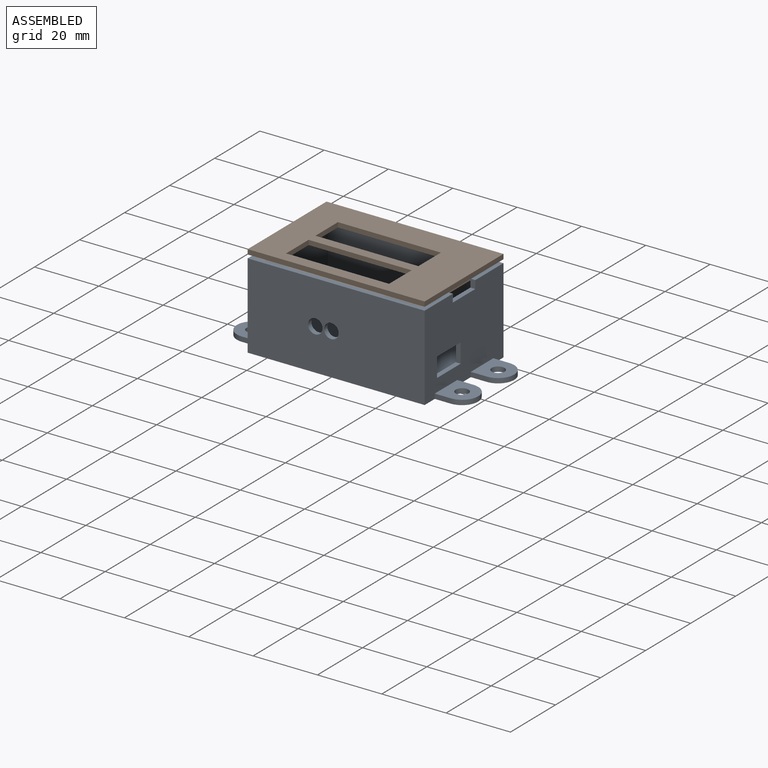
[diagram: assembled view]
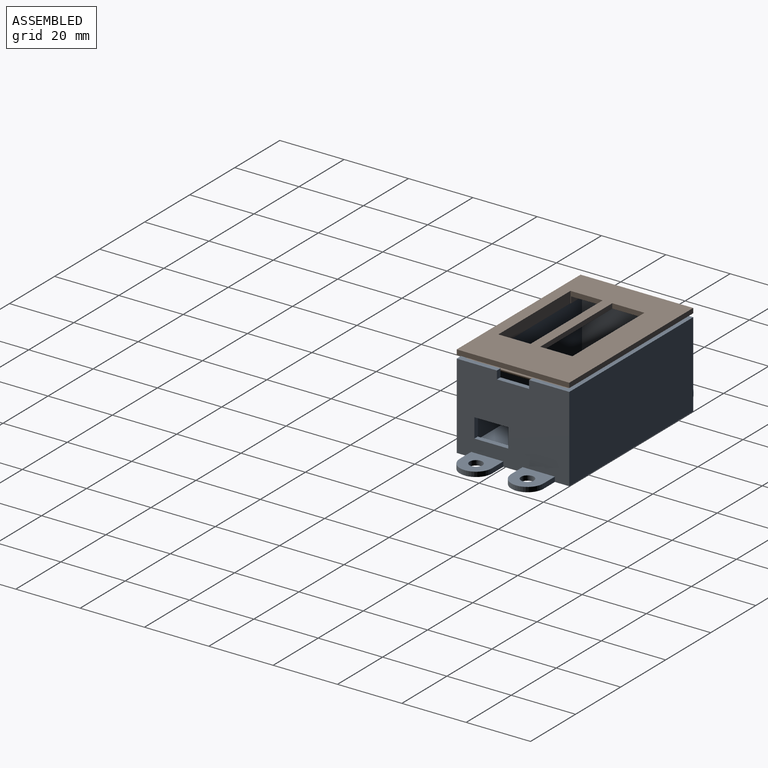
[diagram: assembled view, second angle]
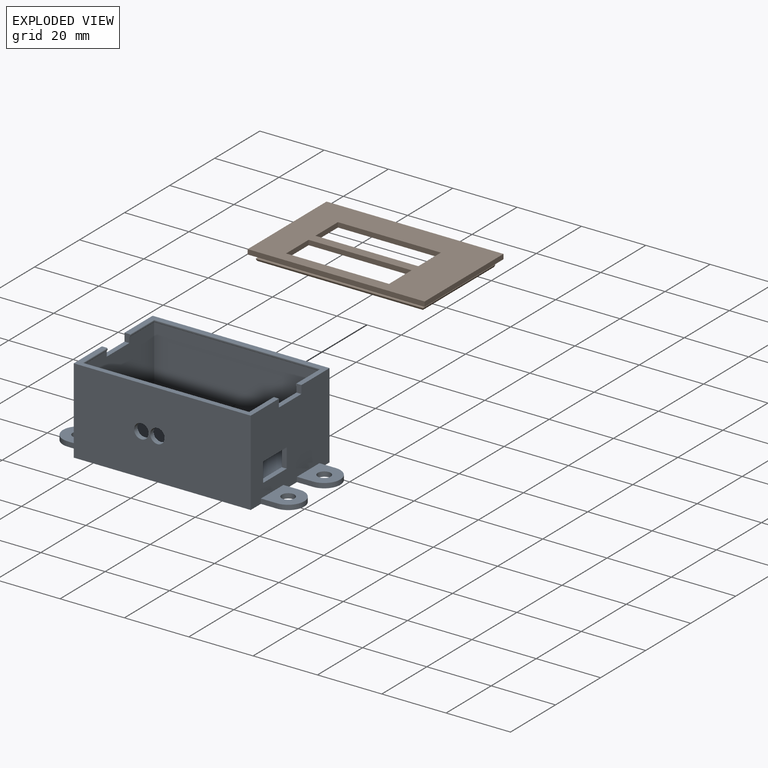
[diagram: exploded view]
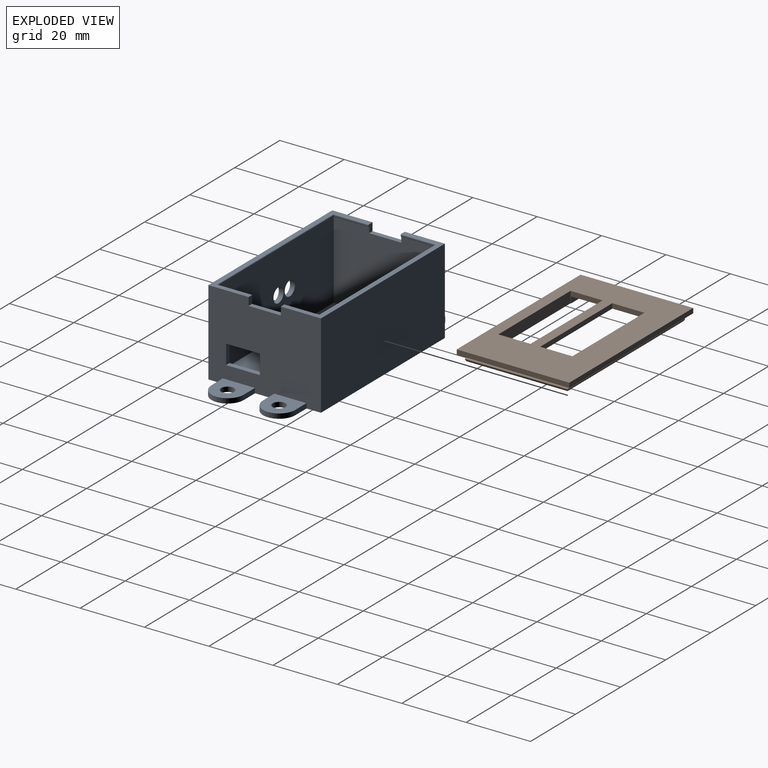
[diagram: exploded view, second angle]
ASSEMBLY  parts=2 mates=2
PART A: 66 faces, bbox 75x35x26.5 mm
  f0: plane 32x24.25mm, normal (-1,0,0), area 695.5mm2, adj f9,f10,f11,f17,f20,f21,f22,f23
  f1: plane 32x24.25mm, normal (1,0,0), area 695.5mm2, adj f8,f10,f11,f17,f24,f25,f26,f27
  f2: plane 35x26.5mm, normal (-1,0,0), area 809.5mm2, adj f3,f13,f14,f15,f16,f24,f25,f26
  f3: plane 55x12.5mm, normal (0,0,1), area 115.5mm2, adj f2,f6,f7,f12,f13,f52,f60,f63
  f4: plane 10.75x0.25mm, normal (-1,0,0), area 2.7mm2, adj f7,f9,f49,f60
  f5: plane 10.75x0.25mm, normal (1,0,0), area 2.7mm2, adj f6,f8,f49,f63
  f6: cylinder r=0.25mm len=11mm, axis (0,1,0), area 4.3mm2, adj f3,f5,f52,f63
  f7: cylinder r=0.25mm len=11mm, axis (0,-1,0), area 4.3mm2, adj f3,f4,f52,f60
  f8: cylinder r=0.25mm len=11mm, axis (0,-1,0), area 4.3mm2, adj f1,f5,f56,f63
  f9: cylinder r=0.25mm len=11mm, axis (0,1,0), area 4.3mm2, adj f0,f4,f56,f60
  f10: plane 52x24.25mm, normal (0,-1,0), area 1261mm2, adj f0,f1,f17,f59
  f11: plane 52x24.25mm, normal (0,1,0), area 1229.2mm2, adj f0,f1,f17,f18,f19,f56
  f12: plane 35x26.5mm, normal (1,0,0), area 809.5mm2, adj f3,f13,f14,f15,f16,f20,f21,f22
  f13: plane 55x26.5mm, normal (0,-1,0), area 1425.7mm2, adj f2,f3,f12,f15,f18,f19
  f14: plane 55x26.5mm, normal (0,1,0), area 1457.5mm2, adj f2,f12,f15,f16
  f15: plane 75x35mm, normal (0,0,-1), area 2231.8mm2, adj f2,f12,f13,f14,f29,f30,f31,f32
  f16: plane 55x12.5mm, normal (0,0,1), area 115.5mm2, adj f2,f12,f14,f53,f54,f55,f61,f64
  f17: plane 52x32mm, normal (0,0,1), area 1664mm2, adj f0,f1,f10,f11
  f18: cylinder r=2.25mm len=4.5mm, axis (0,-1,0), area 21.2mm2, adj f11,f13
  f19: cylinder r=2.25mm len=4.5mm, axis (0,-1,0), area 21.2mm2, adj f11,f13
  f20: plane 10.5x1.5mm, normal (0,0,-1), area 15.7mm2, adj f0,f12,f21,f23
  f21: plane 6x1.5mm, normal (0,1,0), area 9mm2, adj f0,f12,f20,f22
  f22: plane 10.5x1.5mm, normal (0,0,1), area 15.7mm2, adj f0,f12,f21,f23
  f23: plane 6x1.5mm, normal (0,-1,0), area 9mm2, adj f0,f12,f20,f22
  f24: plane 6x1.5mm, normal (0,-1,0), area 9mm2, adj f1,f2,f25,f27
  f25: plane 10.5x1.5mm, normal (0,0,1), area 15.7mm2, adj f1,f2,f24,f26
  f26: plane 6x1.5mm, normal (0,1,0), area 9mm2, adj f1,f2,f25,f27
  f27: plane 10.5x1.5mm, normal (0,0,-1), area 15.7mm2, adj f1,f2,f24,f26
  f28: plane 10x10mm, normal (0,0,1), area 76.7mm2, adj f2,f29,f30,f31,f32
  f29: plane 5x1.5mm, normal (0,-1,0), area 7.5mm2, adj f2,f15,f28,f30
  f30: cylinder r=5mm len=10mm, axis (0,0,-1), area 23.6mm2, adj f15,f28,f29,f31
  f31: plane 5x1.5mm, normal (0,1,0), area 7.5mm2, adj f2,f15,f28,f30
  f32: cylinder r=2mm len=4mm, axis (0,0,-1), area 18.8mm2, adj f15,f28
  f33: plane 10x10mm, normal (0,0,1), area 76.7mm2, adj f2,f34,f35,f36,f37
  f34: plane 5x1.5mm, normal (0,-1,0), area 7.5mm2, adj f2,f15,f33,f37
  f35: cylinder r=2mm len=4mm, axis (0,0,-1), area 18.8mm2, adj f15,f33
  f36: plane 5x1.5mm, normal (0,1,0), area 7.5mm2, adj f2,f15,f33,f37
  f37: cylinder r=5mm len=10mm, axis (0,0,-1), area 23.6mm2, adj f15,f33,f34,f36
  f38: plane 10x10mm, normal (0,0,1), area 76.7mm2, adj f12,f39,f40,f41,f42
  f39: plane 5x1.5mm, normal (0,1,0), area 7.5mm2, adj f12,f15,f38,f42
  f40: cylinder r=2mm len=4mm, axis (0,0,-1), area 18.8mm2, adj f15,f38
  f41: plane 5x1.5mm, normal (0,-1,0), area 7.5mm2, adj f12,f15,f38,f42
  f42: cylinder r=5mm len=10mm, axis (0,0,-1), area 23.6mm2, adj f15,f38,f39,f41
  f43: plane 10x10mm, normal (0,0,1), area 76.7mm2, adj f12,f44,f45,f46,f47
  f44: plane 5x1.5mm, normal (0,-1,0), area 7.5mm2, adj f12,f15,f43,f45
  f45: cylinder r=5mm len=10mm, axis (0,0,-1), area 23.6mm2, adj f15,f43,f44,f46
  f46: plane 5x1.5mm, normal (0,1,0), area 7.5mm2, adj f12,f15,f43,f45
  f47: cylinder r=2mm len=4mm, axis (0,0,-1), area 18.8mm2, adj f15,f43
  f48: plane 10.75x0.25mm, normal (-1,0,0), area 2.7mm2, adj f51,f54,f58,f61
  f49: plane 51.5x0.25mm, normal (0,1,0), area 12.9mm2, adj f4,f5,f52,f56
  f50: plane 10.75x0.25mm, normal (1,0,0), area 2.7mm2, adj f51,f53,f57,f64
  f51: plane 51.5x0.25mm, normal (0,-1,0), area 12.9mm2, adj f48,f50,f55,f59
  f52: cylinder r=0.25mm len=52mm, axis (-1,0,0), area 20.3mm2, adj f3,f6,f7,f49
  f53: cylinder r=0.25mm len=11mm, axis (0,1,0), area 4.3mm2, adj f16,f50,f55,f64
  f54: cylinder r=0.25mm len=11mm, axis (0,-1,0), area 4.3mm2, adj f16,f48,f55,f61
  f55: cylinder r=0.25mm len=52mm, axis (1,0,0), area 20.3mm2, adj f16,f51,f53,f54
  f56: cylinder r=0.25mm len=52mm, axis (1,0,0), area 20.3mm2, adj f8,f9,f11,f49
  f57: cylinder r=0.25mm len=11mm, axis (0,-1,0), area 4.3mm2, adj f1,f50,f59,f64
  f58: cylinder r=0.25mm len=11mm, axis (0,1,0), area 4.3mm2, adj f0,f48,f59,f61
  f59: cylinder r=0.25mm len=52mm, axis (-1,0,0), area 20.3mm2, adj f10,f51,f57,f58
  f60: plane 2.5x1.75mm, normal (0,1,0), area 3.9mm2, adj f0,f3,f4,f7,f9,f12,f62
  f61: plane 2.5x1.75mm, normal (0,-1,0), area 3.9mm2, adj f0,f12,f16,f48,f54,f58,f62
  f62: plane 10x1.5mm, normal (0,0,1), area 15mm2, adj f0,f12,f60,f61
  f63: plane 2.5x1.75mm, normal (0,1,0), area 3.9mm2, adj f1,f2,f3,f5,f6,f8,f65
  f64: plane 2.5x1.75mm, normal (0,-1,0), area 3.9mm2, adj f1,f2,f16,f50,f53,f57,f65
  f65: plane 10x1.5mm, normal (0,0,1), area 15mm2, adj f1,f2,f63,f64
PART B: 45 faces, bbox 55x35x3.5 mm
  f0: plane 10.5x2mm, normal (0,1,0), area 21mm2, adj f31,f32,f35,f40
  f1: plane 55x35mm, normal (0,0,1), area 1285mm2, adj f3,f4,f5,f6,f37,f38,f39,f40
  f2: plane 55x35mm, normal (0,0,-1), area 344mm2, adj f3,f4,f5,f6,f9,f12,f15,f18
  f3: plane 55x1.5mm, normal (0,1,0), area 82.5mm2, adj f1,f2,f4,f5
  f4: plane 35x1.5mm, normal (1,0,0), area 52.5mm2, adj f1,f2,f3,f6
  f5: plane 35x1.5mm, normal (-1,0,0), area 52.5mm2, adj f1,f2,f3,f6
  f6: plane 55x1.5mm, normal (0,-1,0), area 82.5mm2, adj f1,f2,f4,f5
  f7: cylinder r=0.2mm len=52mm, axis (-1,0,0), area 10.9mm2, adj f8,f10,f13,f19
  f8: plane 51.8x0.4mm, normal (0,-0.5,0.87), area 23.7mm2, adj f7,f9,f11,f14
  f9: plane 51x1mm, normal (0,-1,0), area 51mm2, adj f2,f8,f12,f15
  f10: cylinder r=0.2mm len=32mm, axis (0,1,0), area 6.7mm2, adj f7,f11,f16,f20
  f11: plane 31.8x0.4mm, normal (-0.5,0,0.87), area 14.5mm2, adj f8,f10,f12,f17
  f12: plane 31x1mm, normal (-1,0,0), area 31mm2, adj f2,f9,f11,f18
  f13: cylinder r=0.2mm len=32mm, axis (0,-1,0), area 6.7mm2, adj f7,f14,f16,f22
  f14: plane 31.8x0.4mm, normal (0.5,0,0.87), area 14.5mm2, adj f8,f13,f15,f17
  f15: plane 31x1mm, normal (1,0,0), area 31mm2, adj f2,f9,f14,f18
  f16: cylinder r=0.2mm len=52mm, axis (1,0,0), area 10.9mm2, adj f10,f13,f17,f21
  f17: plane 51.8x0.4mm, normal (0,0.5,0.87), area 23.7mm2, adj f11,f14,f16,f18
  f18: plane 51x1mm, normal (0,1,0), area 51mm2, adj f2,f12,f15,f17
  f19: plane 52x0.03mm, normal (0,-1,0), area 1.4mm2, adj f7,f20,f22,f27
  f20: plane 32x0.03mm, normal (-1,0,0), area 0.9mm2, adj f10,f19,f21,f28
  f21: plane 52x0.03mm, normal (0,1,0), area 1.4mm2, adj f16,f20,f22,f29
  f22: plane 32x0.03mm, normal (1,0,0), area 0.9mm2, adj f13,f19,f21,f30
  f23: plane 51.89x0.37mm, normal (0,0.87,-0.5), area 22mm2, adj f24,f25,f29,f31
  f24: plane 31.89x0.37mm, normal (0.87,0,-0.5), area 13.5mm2, adj f23,f26,f30,f31
  f25: plane 31.89x0.37mm, normal (-0.87,0,-0.5), area 13.5mm2, adj f23,f26,f28,f31
  f26: plane 51.89x0.37mm, normal (0,-0.87,-0.5), area 22mm2, adj f24,f25,f27,f31
  f27: cylinder r=0.4mm len=52mm, axis (-1,0,0), area 10.9mm2, adj f19,f26,f28,f30
  f28: cylinder r=0.4mm len=32mm, axis (0,1,0), area 6.7mm2, adj f20,f25,f27,f29
  f29: cylinder r=0.4mm len=52mm, axis (1,0,0), area 10.9mm2, adj f21,f23,f28,f30
  f30: cylinder r=0.4mm len=32mm, axis (0,-1,0), area 6.7mm2, adj f22,f24,f27,f29
  f31: plane 51.47x31.47mm, normal (0,0,-1), area 258mm2, adj f0,f23,f24,f25,f26,f33,f34,f35
  f32: plane 49x27.68mm, normal (0,0,-1), area 721.6mm2, adj f0,f33,f34,f35,f36,f37,f38,f40
  f33: plane 27.68x2mm, normal (1,0,0), area 55.4mm2, adj f31,f32,f34,f36
  f34: plane 49x2mm, normal (0,-1,0), area 98mm2, adj f31,f32,f33,f35
  f35: plane 27.68x2mm, normal (-1,0,0), area 55.4mm2, adj f0,f31,f32,f34
  f36: plane 6.5x2mm, normal (0,1,0), area 13mm2, adj f31,f32,f33,f38
  f37: plane 32x1.5mm, normal (0,-1,0), area 48mm2, adj f1,f32,f38,f40
  f38: plane 10x3.5mm, normal (1,0,0), area 15.3mm2, adj f1,f31,f32,f36,f37,f39
  f39: plane 32x3.5mm, normal (0,1,0), area 112mm2, adj f1,f31,f38,f40
  f40: plane 10x3.5mm, normal (-1,0,0), area 15.3mm2, adj f0,f1,f31,f32,f37,f39
  f41: plane 32x1.5mm, normal (0,-1,0), area 48mm2, adj f1,f32,f42,f44
  f42: plane 10x1.5mm, normal (1,0,0), area 15mm2, adj f1,f32,f41,f43
  f43: plane 32x1.5mm, normal (0,1,0), area 48mm2, adj f1,f32,f42,f44
  f44: plane 10x1.5mm, normal (-1,0,0), area 15mm2, adj f1,f32,f41,f43
PLACE A t=(3.21,24.04,1.74)mm
PLACE B t=(3.21,24.04,2.83)mm
MATE planar B.f4 <-> A.f12  axis (1,0,0) through (30.71,24.04,28.58)mm
MATE planar B.f6 <-> A.f13  axis (0,-1,0) through (3.21,6.54,28.58)mm
